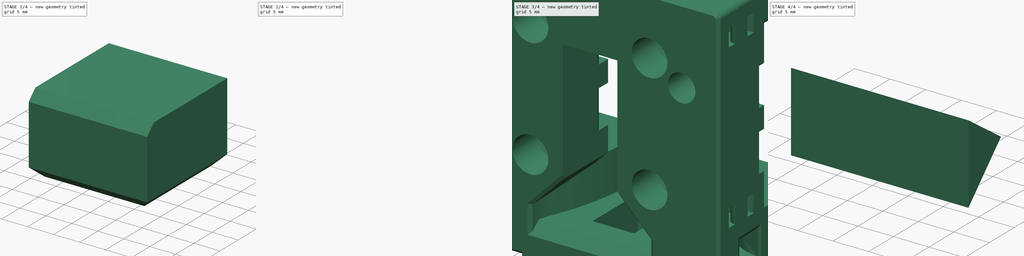
[diagram: build sequence overview — one tinted view per stage of 4, left to right]
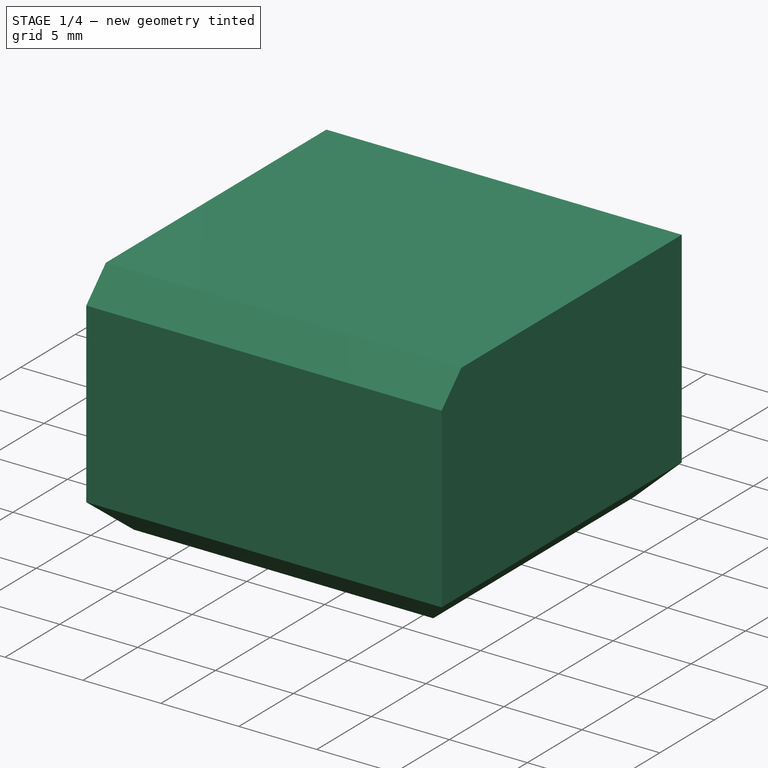
[diagram: stage 1 of 4 — iso view after this stage's code; geometry added in this stage tinted green]
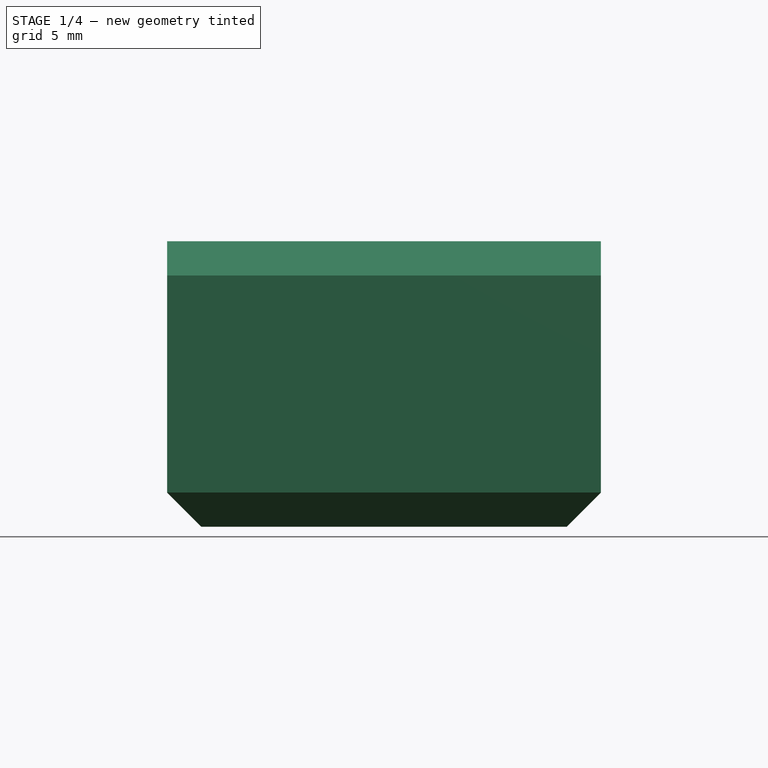
[diagram: stage 1 of 4 — front view after this stage's code; geometry added in this stage tinted green]
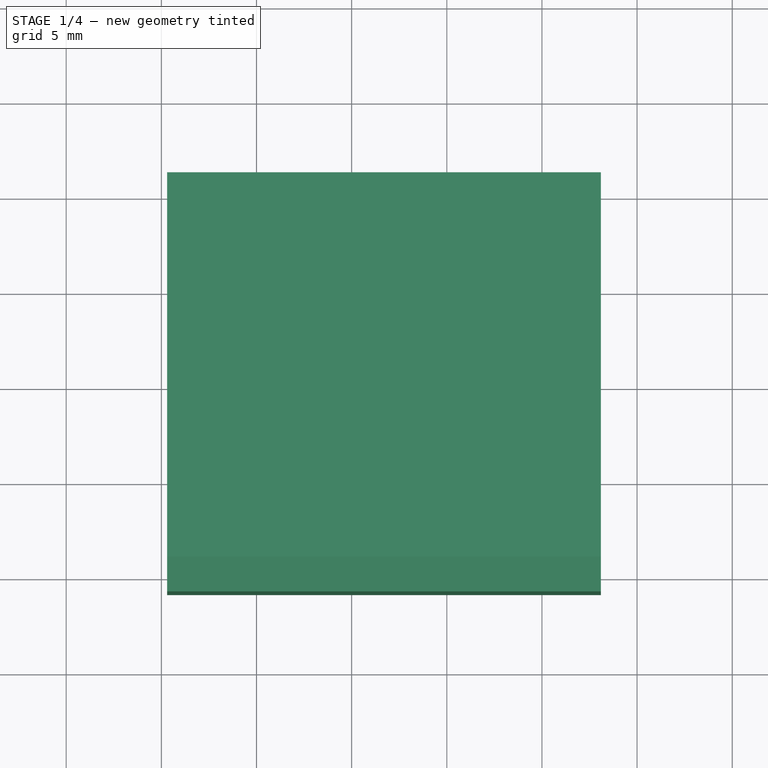
[diagram: stage 1 of 4 — top view after this stage's code; geometry added in this stage tinted green]
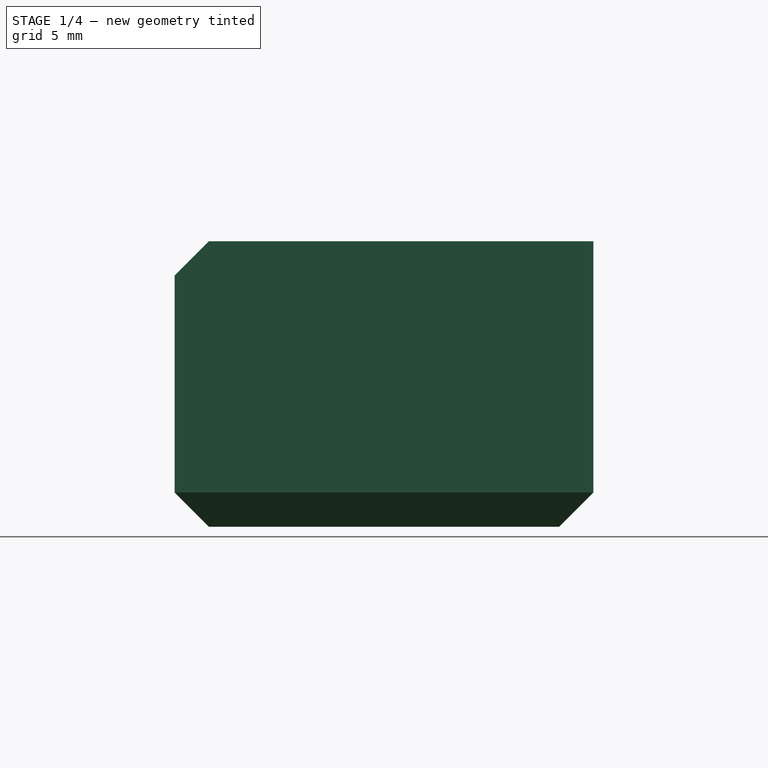
[diagram: stage 1 of 4 — right view after this stage's code; geometry added in this stage tinted green]
FCSTD DOCUMENT  (FreeCAD 2023.811R14555 (Git shallow))
Label: MGN12_Carriage_KlickyPCB_CrazyVolc-RapidoHF
License: All rights reserved
objects: Sketcher::SketchObject×4, PartDesign::Pad×3, Part::Feature×1, Part::Box×1, PartDesign::Body×1, Part::Chamfer×1, Part::MultiFuse×1, Part::Cut×1, Part::Fillet×1, Part::Extrusion×1
note: 25 computed .brp shape members not serialized (recipe doc carries the construction recipe); baked Part::Feature solids carry a one-line shape summary decoded from their .brp

FEATURE [Part::Feature] Solid  label="Carriage.1"
  InvalidShape = false
  TreeRank = 1
  ValidateShape = false
  shape: bbox 43.61 x 24 x 45.4 mm, 272 faces (baked)
FEATURE [Part::Box] Box  label="Cube"
  AttacherType = Attacher::AttachEngine3D
  Height = 15
  InvalidShape = false
  Length = 22.8
  Placement = pos=(115.3,149.15,76.2) rot=(0,0,1;0rad)
  TreeRank = 29
  ValidateShape = false
  Width = 22
FEATURE [PartDesign::Body] Body
  AutoGroupSolids = false
  ClaimAllChildren = false
  ExportMode = 0
  Group = -> [Sketch,Pad,Sketch001,Pad001,Sketch002,Pad002]
  InvalidShape = false
  Origin = -> Origin
  Placement = pos=(20.7,8.2,-4.4) rot=(0,0,1;0rad)
  Tip = -> Pad002
  TreeRank = 31
  ValidateShape = false
  _ExportChildren = -> [Pad,Pad001,Pad002]
  _GroupVersion = 1
FEATURE [Part::Chamfer] Chamfer
  Base = -> Box
  EdgeLinks = -> Box [Edge4,Edge8,Edge9,Edge10,Edge11]
  Edges = 5 edges r=1.8: [Edge4,Edge8,Edge9,Edge10,Edge11]
  InvalidShape = false
  TreeRank = 30
  ValidateShape = false
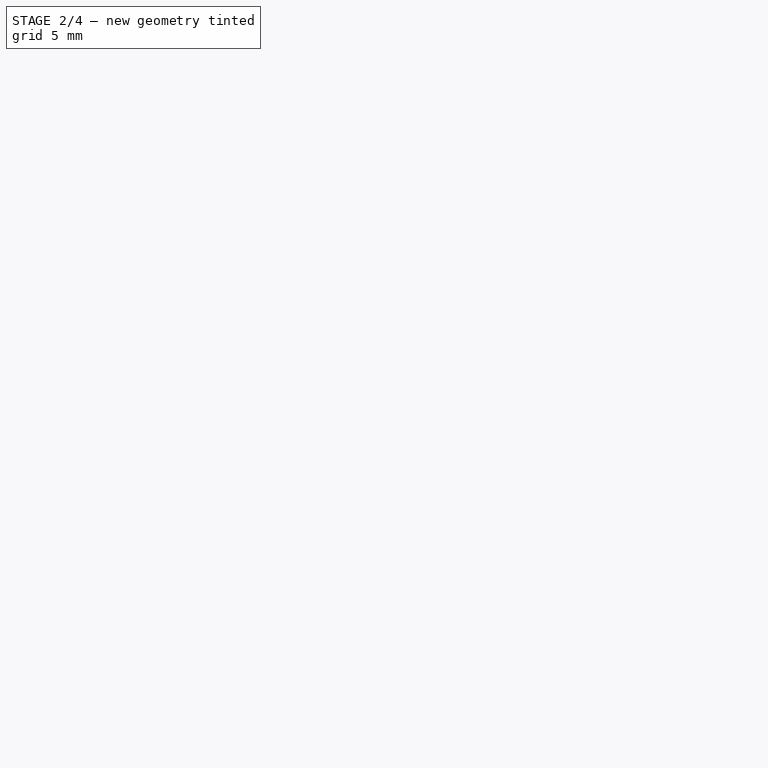
[diagram: stage 2 of 4 — iso view after this stage's code; geometry added in this stage tinted green]
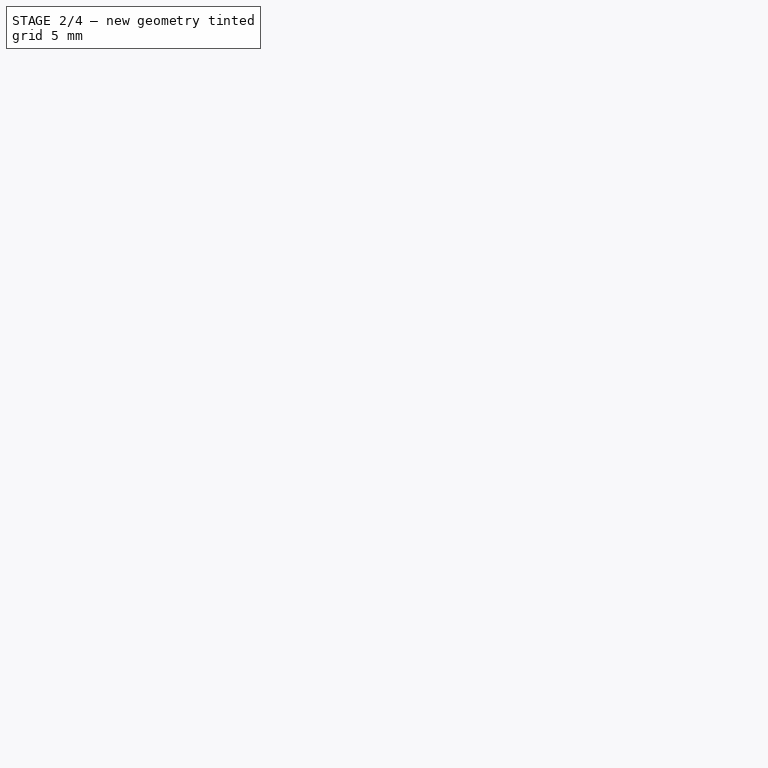
[diagram: stage 2 of 4 — front view after this stage's code; geometry added in this stage tinted green]
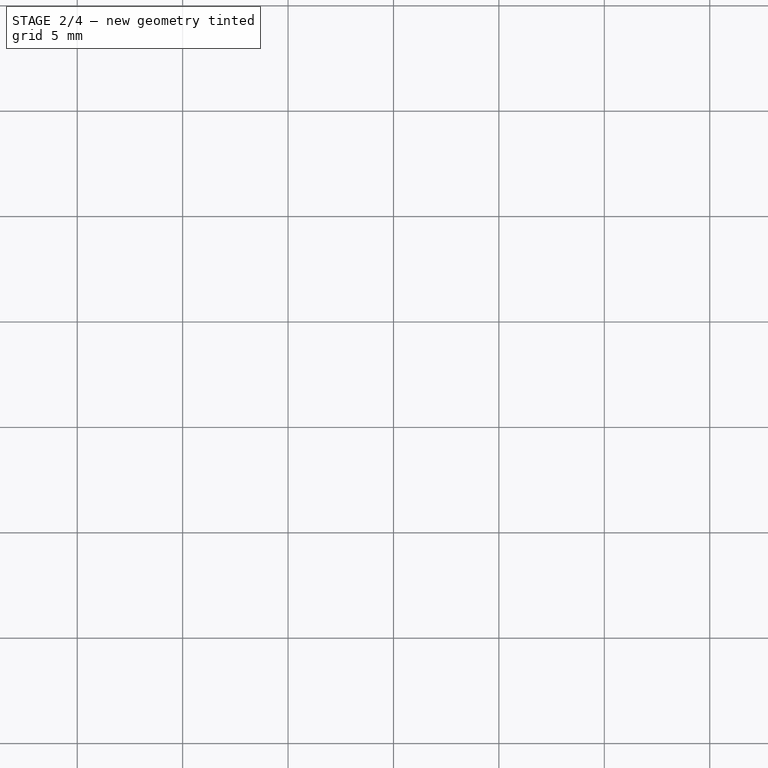
[diagram: stage 2 of 4 — top view after this stage's code; geometry added in this stage tinted green]
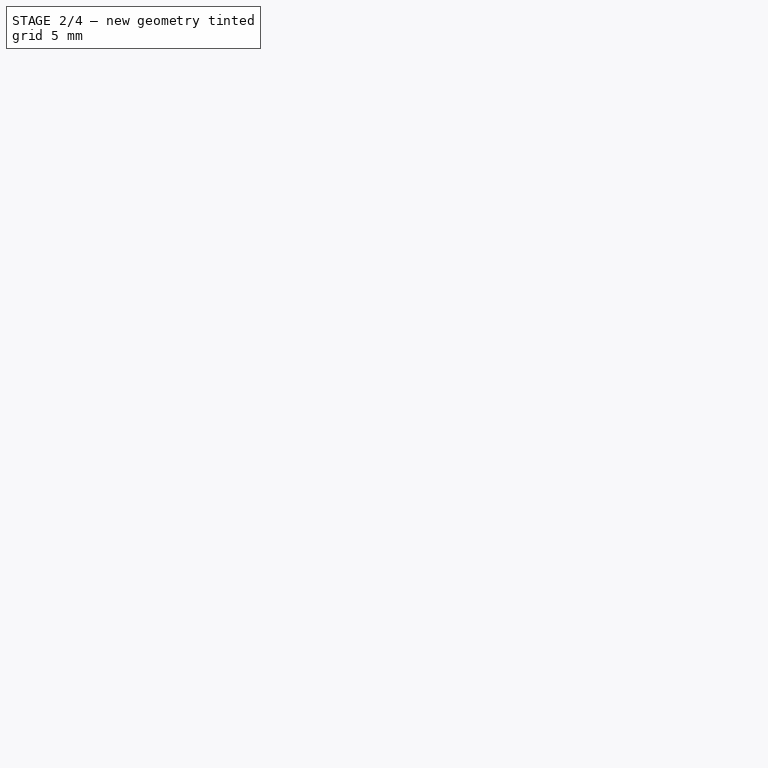
[diagram: stage 2 of 4 — right view after this stage's code; geometry added in this stage tinted green]
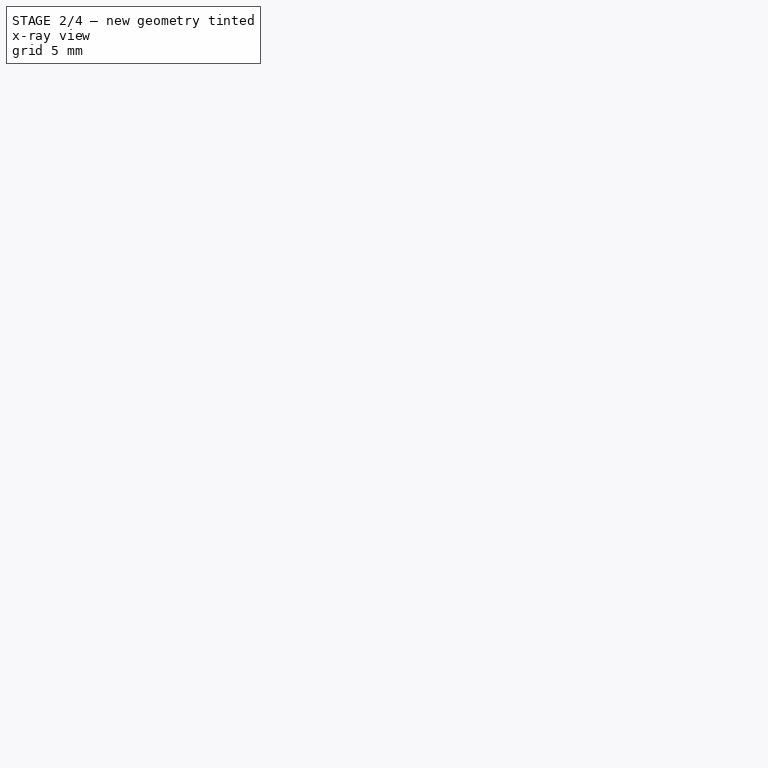
[diagram: stage 2 of 4 — x-ray composite at the iso view; earlier geometry ghosted, this stage's added geometry solid]
FEATURE [Sketcher::SketchObject] Sketch
  ArcFitTolerance = 1e-06
  AttachmentSupport = -> [XY_Plane]
  ExternalBSplineMaxDegree = 5
  ExternalBSplineTolerance = 0.0001
  FullyConstrained = true
  InternalTolerance = 1e-06
  InvalidShape = false
  MakeInternals = false
  MapMode = 5
  Support = -> [XY_Plane]
  TreeRank = 15
  ValidateShape = false
  sketch-geometry (10):
    g0: ArcOfCircle CenterX=-8.3 CenterY=-8.05 CenterZ=0 NormalX=0 NormalY=0 NormalZ=1 AngleXU=0 Radius=0.7 StartAngle=3.14159 EndAngle=4.71239
    g1: LineSegment StartX=-9 StartY=-8.05 StartZ=0 EndX=-9 EndY=8.05 EndZ=0
    g2: ArcOfCircle CenterX=-8.3 CenterY=8.05 CenterZ=0 NormalX=0 NormalY=0 NormalZ=1 AngleXU=0 Radius=0.7 StartAngle=1.5708 EndAngle=3.14159
    g3: LineSegment StartX=-8.3 StartY=8.75 StartZ=0 EndX=8.3 EndY=8.75 EndZ=0
    g4: ArcOfCircle CenterX=8.3 CenterY=8.05 CenterZ=0 NormalX=0 NormalY=0 NormalZ=1 AngleXU=0 Radius=0.7 StartAngle=1e-15 EndAngle=1.5708
    g5: LineSegment StartX=9 StartY=8.05 StartZ=0 EndX=9 EndY=-8.05 EndZ=0
    g6: ArcOfCircle CenterX=8.3 CenterY=-8.05 CenterZ=0 NormalX=0 NormalY=0 NormalZ=1 AngleXU=0 Radius=0.7 StartAngle=4.71239 EndAngle=6.28319
    g7: LineSegment StartX=8.3 StartY=-8.75 StartZ=0 EndX=-8.3 EndY=-8.75 EndZ=0
    g8: GeomPoint [constr] X=-9 Y=-8.75 Z=0
    g9: GeomPoint [constr] X=9 Y=8.75 Z=0
  constraints (23):
    c: Tangent(g0,g1) = 1.5708
    c: Tangent(g1,g2) = 1.5708
    c: Tangent(g2,g3) = 1.5708
    c: Tangent(g3,g4) = 1.5708
    c: Tangent(g4,g5) = 1.5708
    c: Tangent(g5,g6) = 1.5708
    c: Tangent(g6,g7) = 1.5708
    c: Tangent(g7,g0) = 1.5708
    c: Horizontal(g3)
    c: Horizontal(g7)
    c: Vertical(g1)
    c: Vertical(g5)
    c: Equal(g0,g2)
    c: Equal(g2,g4)
    c: Equal(g4,g6)
    c: PointOnObject(g8,g1)
    c: PointOnObject(g8,g7)
    c: PointOnObject(g9,g3)
    c: PointOnObject(g9,g5)
    c: Symmetric(g6,g2,g-1)
    c: DistanceY(g0,g2) = 17.5
    c: DistanceX(g0,g5) = 18
    c: Radius(g6) = 0.7
FEATURE [PartDesign::Pad] Pad  label="PCB_pd"
  AddSubType = 0
  AlongSketchNormal = false
  AutoTaperInnerAngle = true
  CheckUpToFaceLimits = true
  ClaimChildren = false
  Direction = (0,0,1)
  Fit = 0
  FitJoin = 0
  InnerFit = 0
  InnerFitJoin = 0
  InvalidShape = false
  Length = 1.6
  Length2 = 10
  Linearize = true
  NewSolid = false
  Profile = -> Sketch
  ReferenceAxis = -> Sketch [N_Axis]
  Suppress = false
  TaperInnerAngle = 0
  TaperInnerAngleRev = 0
  TreeRank = 16
  Type = 0
  ValidateShape = true
  _ProfileBasedVersion = 1
FEATURE [Sketcher::SketchObject] Sketch001
  ArcFitTolerance = 1e-06
  AttachmentSupport = -> [Pad]
  ExternalBSplineMaxDegree = 5
  ExternalBSplineTolerance = 0.0001
  ExternalGeometry = -> [Pad]
  FullyConstrained = true
  InternalTolerance = 1e-06
  InvalidShape = false
  MakeInternals = false
  MapMode = 5
  Placement = pos=(0,0,1.6) rot=(0,0,1;0rad)
  Support = -> [Pad]
  TreeRank = 17
  ValidateShape = false
  sketch-geometry (7):
    g0: Circle CenterX=-5.3 CenterY=5.45 CenterZ=0 NormalX=0 NormalY=0 NormalZ=1 AngleXU=0 Radius=1.45
    g1: Circle CenterX=-5.3 CenterY=-5.45 CenterZ=0 NormalX=0 NormalY=0 NormalZ=1 AngleXU=0 Radius=1.45
    g2: Circle CenterX=5.3 CenterY=0 CenterZ=0 NormalX=0 NormalY=0 NormalZ=1 AngleXU=0 Radius=1.45
    g3: GeomPoint [constr] X=9 Y=0 Z=0
    g4: GeomPoint [constr] X=6.75 Y=0 Z=0
    g5: GeomPoint [constr] X=-9 Y=-5.45 Z=0
    g6: GeomPoint [constr] X=-6.75 Y=-5.45 Z=0
  constraints (16):
    c: PointOnObject(g2,g-1)
    c: Equal(g0,g2)
    c: Equal(g2,g1)
    c: Diameter(g0) = 2.9
    c: PointOnObject(g3,g-1)
    c: Vertical(g-3,g3)
    c: PointOnObject(g4,g2)
    c: PointOnObject(g4,g-1)
    c: DistanceX(g4,g3) = 2.25
    c: Symmetric(g0,g1,g-1)
    c: Vertical(g5,g-4)
    c: Horizontal(g5,g1)
    c: PointOnObject(g6,g1)
    c: Horizontal(g6,g1)
    c: DistanceX(g5,g6) = 2.25
    c: DistanceY(g1,g0) = 10.9
FEATURE [PartDesign::Pad] Pad001  label="M2-Insert_pd"
  AddSubType = 0
  AlongSketchNormal = false
  AutoTaperInnerAngle = true
  BaseFeature = -> Pad
  CheckUpToFaceLimits = true
  ClaimChildren = false
  Direction = (0,0,1)
  Fit = 0
  FitJoin = 0
  InnerFit = 0
  InnerFitJoin = 0
  InvalidShape = false
  Length = 4.2
  Length2 = 10
  Linearize = true
  NewSolid = false
  Profile = -> Sketch001
  ReferenceAxis = -> Sketch001 [N_Axis]
  Suppress = false
  TaperInnerAngle = 0
  TaperInnerAngleRev = 0
  TreeRank = 18
  Type = 0
  ValidateShape = true
  _ProfileBasedVersion = 1
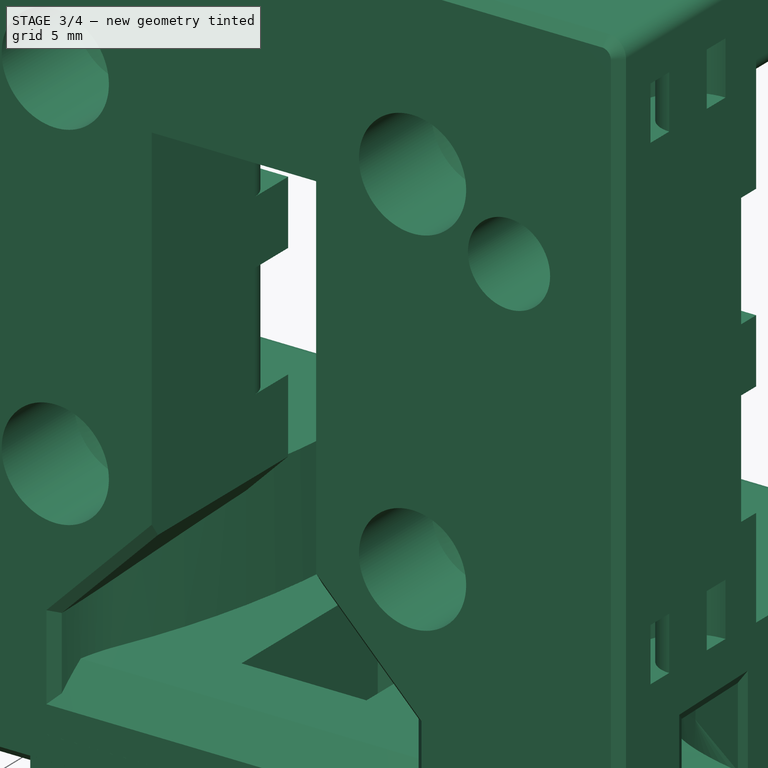
[diagram: stage 3 of 4 — iso view after this stage's code; geometry added in this stage tinted green]
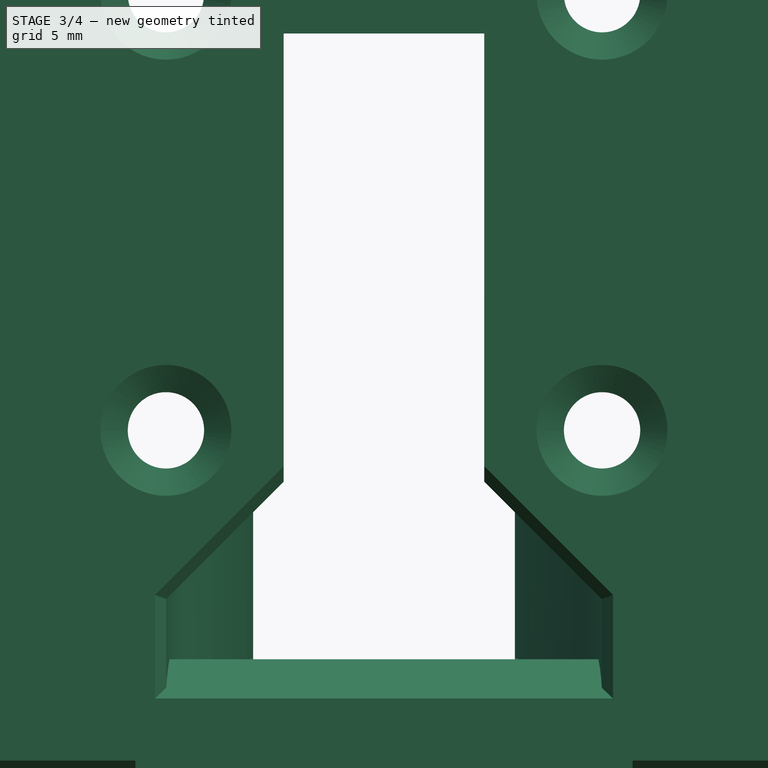
[diagram: stage 3 of 4 — front view after this stage's code; geometry added in this stage tinted green]
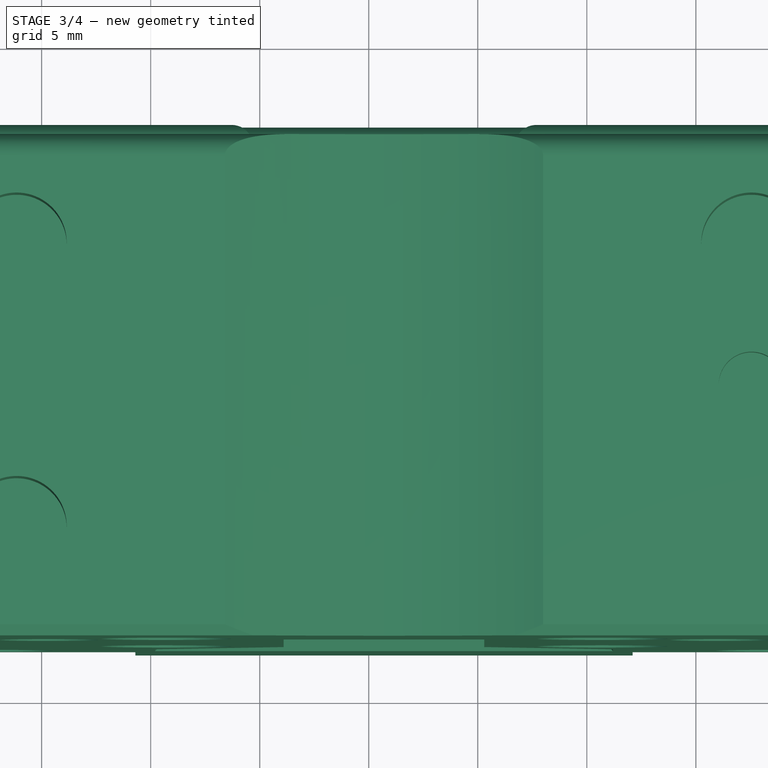
[diagram: stage 3 of 4 — top view after this stage's code; geometry added in this stage tinted green]
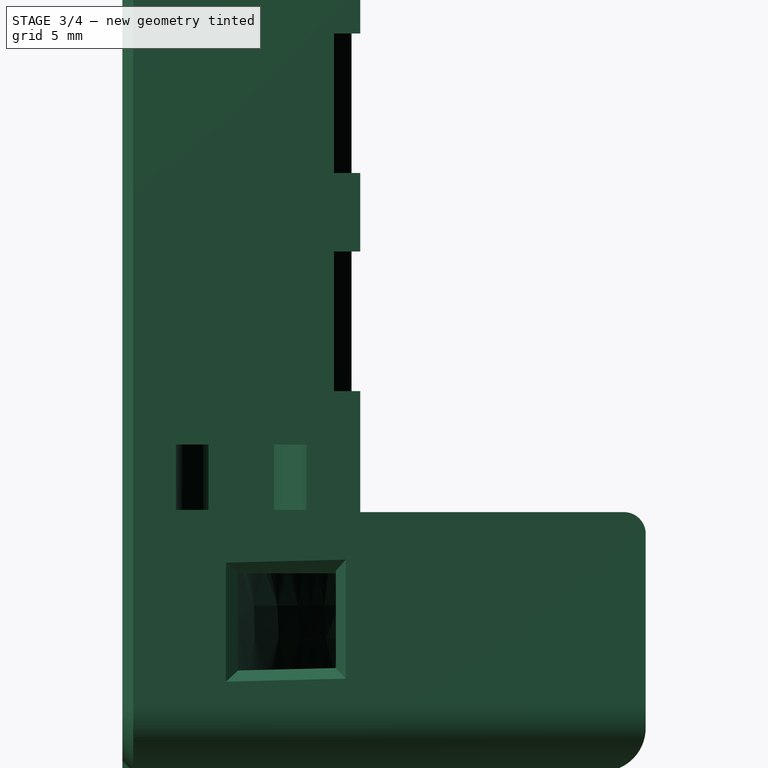
[diagram: stage 3 of 4 — right view after this stage's code; geometry added in this stage tinted green]
FEATURE [Sketcher::SketchObject] Sketch002
  ArcFitTolerance = 1e-06
  AttachmentSupport = -> [Pad001]
  ExternalBSplineMaxDegree = 5
  ExternalBSplineTolerance = 0.0001
  FullyConstrained = true
  InternalTolerance = 1e-06
  InvalidShape = false
  MakeInternals = false
  MapMode = 5
  Placement = pos=(0,0,1.6) rot=(0,0,1;0rad)
  Support = -> [Pad001]
  TreeRank = 20
  ValidateShape = false
  sketch-geometry (6):
    g0: LineSegment StartX=3.5 StartY=5.45 StartZ=0 EndX=3.5 EndY=-5.45 EndZ=0
    g1: LineSegment StartX=3.5 StartY=-5.45 StartZ=0 EndX=-3.5 EndY=-5.45 EndZ=0
    g2: LineSegment StartX=-3.5 StartY=-5.45 StartZ=0 EndX=-3.5 EndY=5.45 EndZ=0
    g3: LineSegment StartX=-3.5 StartY=5.45 StartZ=0 EndX=-1.9 EndY=7.05 EndZ=0
    g4: LineSegment StartX=-1.9 StartY=7.05 StartZ=0 EndX=1.9 EndY=7.05 EndZ=0
    g5: LineSegment StartX=1.9 StartY=7.05 StartZ=0 EndX=3.5 EndY=5.45 EndZ=0
  constraints (16):
    c: Coincident(g0,g1)
    c: Coincident(g1,g2)
    c: Horizontal(g1)
    c: Vertical(g0)
    c: Vertical(g2)
    c: Symmetric(g0,g1,g-1)
    c: DistanceX(g2,g0) = 7
    c: DistanceY(g2,g2) = 10.9
    c: Horizontal(g0,g2)
    c: Coincident(g2,g3)
    c: Coincident(g3,g4)
    c: Coincident(g4,g5)
    c: Coincident(g5,g0)
    c: Symmetric(g3,g4,g-2)
    c: Angle(g2,g3) = 2.35619
    c: DistanceX(g4,g4) = 3.8
FEATURE [PartDesign::Pad] Pad002  label="JST-Connector_pd"
  AddSubType = 0
  AlongSketchNormal = false
  AutoTaperInnerAngle = true
  BaseFeature = -> Pad001
  CheckUpToFaceLimits = true
  ClaimChildren = false
  Direction = (0,0,1)
  Fit = 0
  FitJoin = 0
  InnerFit = 0
  InnerFitJoin = 0
  InvalidShape = false
  Length = 16
  Length2 = 10
  Linearize = true
  NewSolid = false
  Profile = -> Sketch002
  ReferenceAxis = -> Sketch002 [N_Axis]
  Suppress = false
  TaperInnerAngle = 0
  TaperInnerAngleRev = 0
  TreeRank = 21
  Type = 0
  ValidateShape = true
  _ProfileBasedVersion = 1
FEATURE [Part::MultiFuse] Fusion
  InvalidShape = false
  Placement = pos=(-106,-152,-80) rot=(0,0,1;0rad)
  Shapes = -> [Solid,Chamfer]
  TreeRank = 32
  ValidateShape = false
FEATURE [Part::Cut] Cut
  Base = -> Fusion
  InvalidShape = false
  Tool = -> Body
  TreeRank = 33
  ValidateShape = false
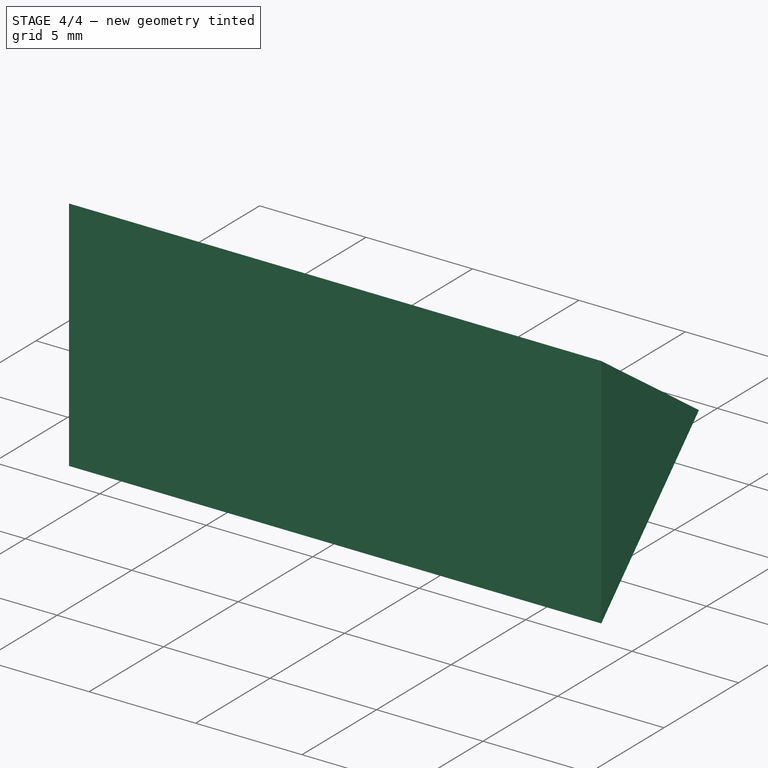
[diagram: stage 4 of 4 — iso view after this stage's code; geometry added in this stage tinted green]
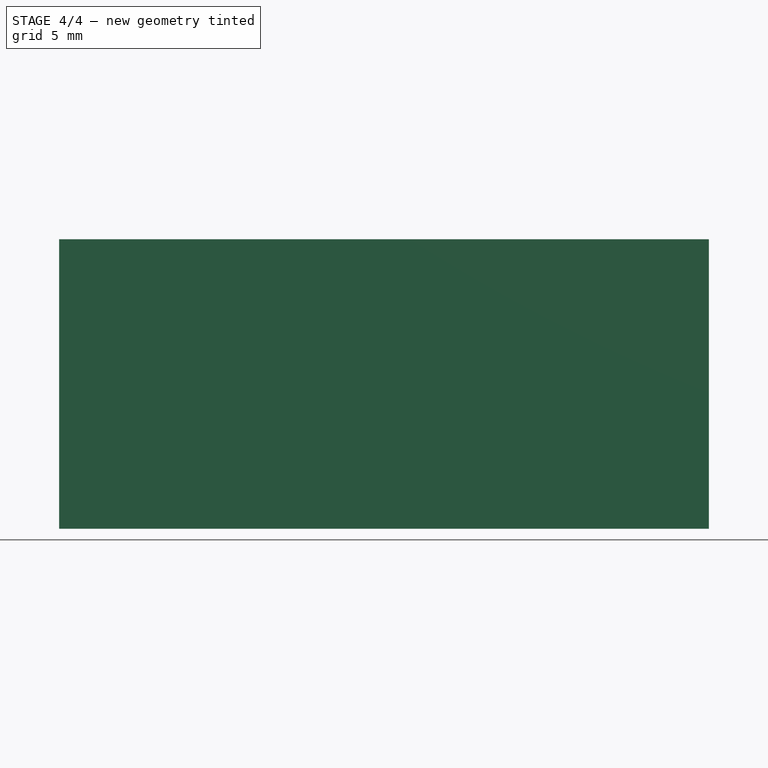
[diagram: stage 4 of 4 — front view after this stage's code; geometry added in this stage tinted green]
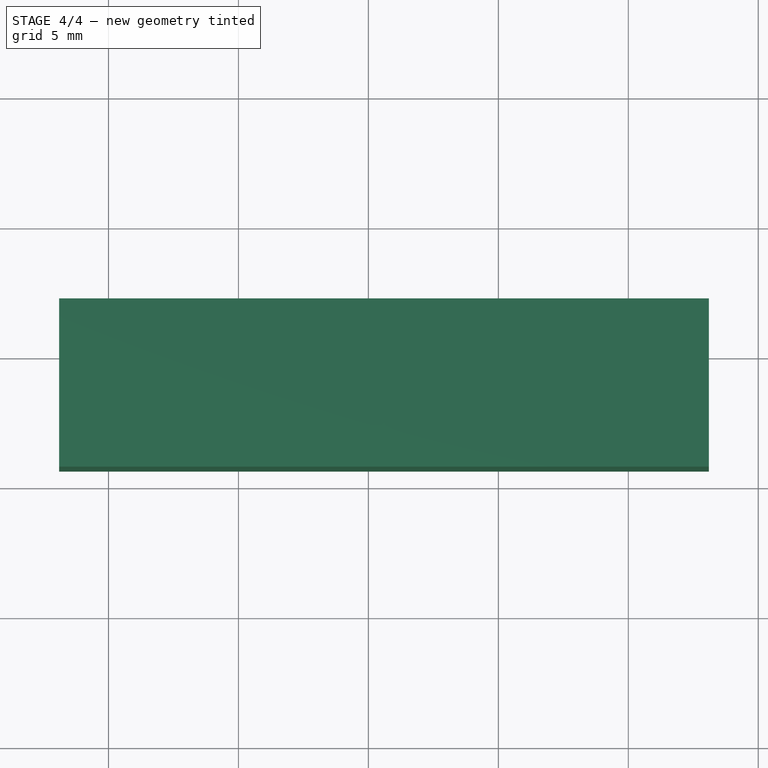
[diagram: stage 4 of 4 — top view after this stage's code; geometry added in this stage tinted green]
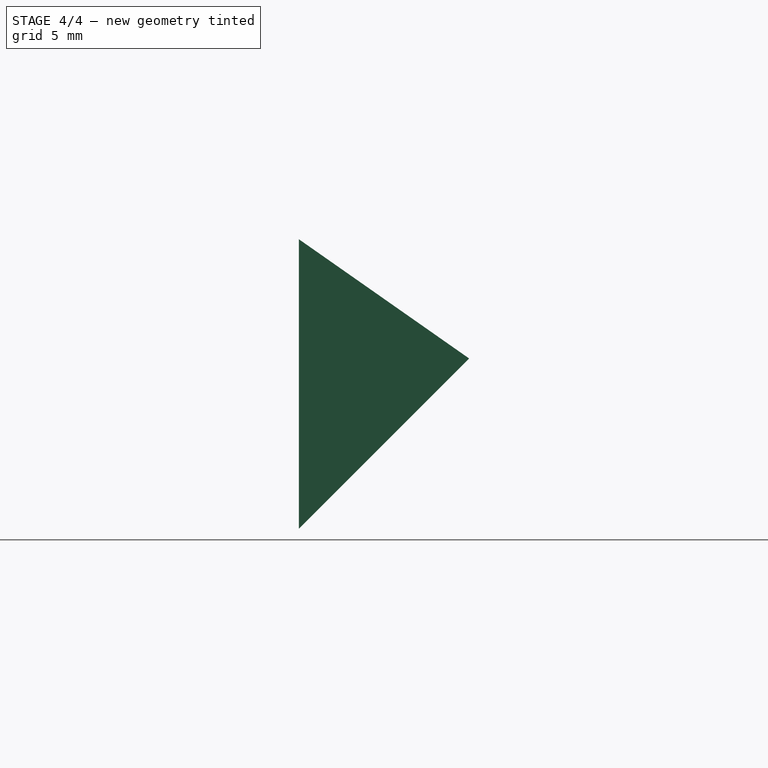
[diagram: stage 4 of 4 — right view after this stage's code; geometry added in this stage tinted green]
FEATURE [Part::Fillet] Fillet
  Base = -> Cut
  EdgeLinks = -> Cut [Edge440,Edge443]
  Edges = 2 edges r=2: [Edge440,Edge443]
  InvalidShape = false
  TreeRank = 34
  ValidateShape = false
FEATURE [Sketcher::SketchObject] Sketch003
  ArcFitTolerance = 1e-06
  AttachmentSupport = -> [Fillet]
  ExternalBSplineMaxDegree = 5
  ExternalBSplineTolerance = 0.0001
  FullyConstrained = false
  InternalTolerance = 1e-06
  InvalidShape = false
  MakeInternals = false
  MapMode = 5
  Placement = pos=(32.1,0,0) rot=(0.57735,0.57735,0.57735;2.0944rad)
  Support = -> [Fillet]
  TreeRank = 35
  ValidateShape = false
  sketch-geometry (3):
    g0: LineSegment StartX=-3.1492 StartY=6.9988 StartZ=0 EndX=3.40402 EndY=2.41019 EndZ=0
    g1: LineSegment StartX=3.40402 StartY=2.41019 StartZ=0 EndX=-3.1492 EndY=-4.14303 EndZ=0
    g2: LineSegment StartX=-3.1492 StartY=-4.14303 StartZ=0 EndX=-3.1492 EndY=6.9988 EndZ=0
  constraints (7):
    c: Coincident(g0,g1)
    c: Coincident(g1,g2)
    c: Coincident(g2,g0)
    c: Vertical(g2)
    c: Angle(g2,g0) = 0.959931
    c: Distance(g0) = 8
    c: Angle(g1,g2) = 0.785398
FEATURE [Part::Extrusion] Extrude
  AutoTaperInnerAngle = true
  Base = -> Sketch003
  Dir = (1,0,0)
  DirMode = 2
  FaceMakerClass = Part::FaceMakerBullseye
  InvalidShape = false
  LengthFwd = 25
  LengthRev = 0
  Linearize = true
  Placement = pos=(1,-1.2,0) rot=(0,0,1;0rad)
  Reversed = true
  Solid = true
  Symmetric = false
  TaperInnerAngle = 0
  TaperInnerAngleRev = 0
  TreeRank = 36
  ValidateShape = false
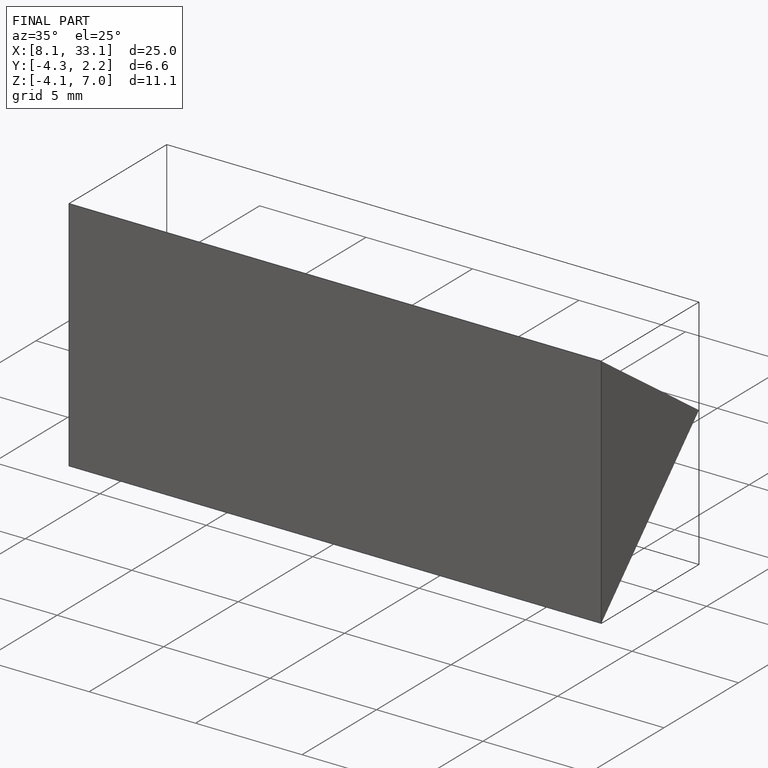
[diagram: finished part — iso view with bounding-box wireframe]
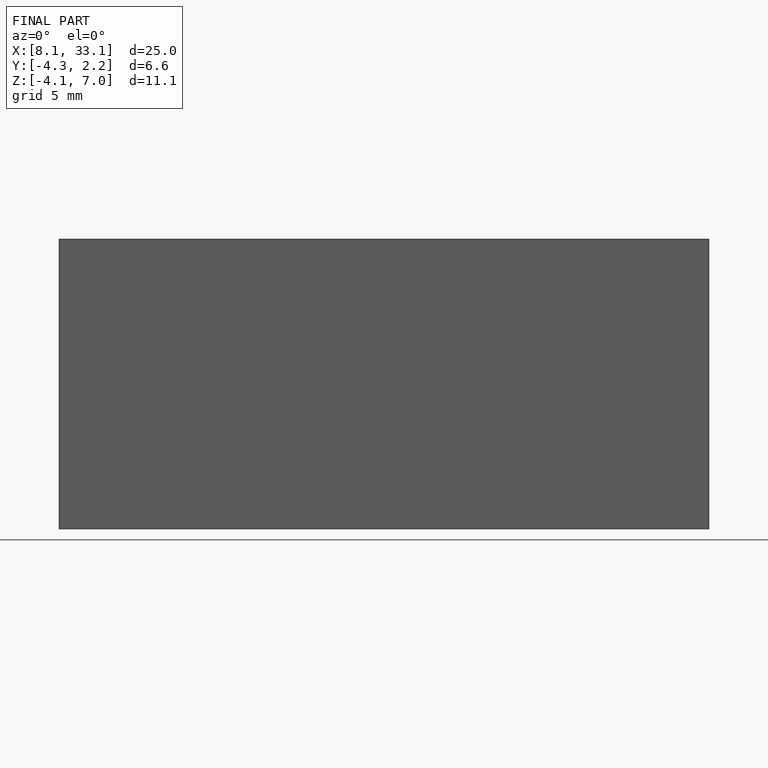
[diagram: finished part — front view with bounding-box wireframe]
